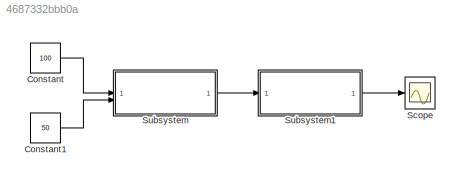
MODEL slx_4687332bbb0a
KIND model
CONFIG AbsTol = auto
CONFIG EnableMultiTasking = off
CONFIG FixedStep = auto
CONFIG MaxStep = auto
CONFIG MinStep = auto
CONFIG RelTol = 1e-3
CONFIG SampleTimeConstraint = Unconstrained
CONFIG SolverName = VariableStepAuto
CONFIG StartTime = 0.0
CONFIG StopTime = 10.0
BLOCK [Constant] Constant
  Value = 100
BLOCK [Constant] Constant1
  Value = 50
BLOCK [Scope] Scope
  Floating = off
  NumInputPorts = 1
  ScopeSpecificationString = Simulink.scopes.TimeScopeBlockCfg('CurrentConfiguration', extmgr.ConfigurationSet(extmgr.Configuration('Core','General UI',true),extmgr.Configuration('Core','Source UI',true),extmgr.Configuration('Sources','WiredSimulink',true,'DataLoggingVariableName','ScopeData1'),extmgr.Configuration('Visuals','Time Domain',true,'SerializedDisplays',{struct('MinYLimReal','0.58','MaxYLimReal','0.78','YLabelReal'...<+1509ch>
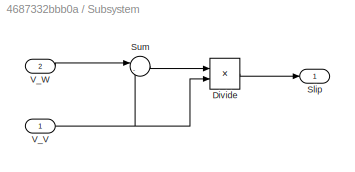
BLOCK [SubSystem] Subsystem
BLOCK [Product] Subsystem/Divide
  Inputs = */
BLOCK [Outport] Subsystem/Slip
BLOCK [Sum] Subsystem/Sum
  Inputs = |-+
BLOCK [Inport] Subsystem/V_V
BLOCK [Inport] Subsystem/V_W
  Port = 2
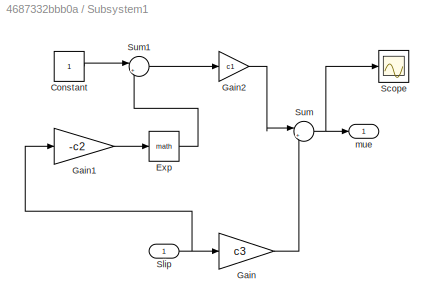
BLOCK [SubSystem] Subsystem1
BLOCK [Constant] Subsystem1/Constant
BLOCK [Math] Subsystem1/Exp
BLOCK [Gain] Subsystem1/Gain
  Gain = c3
BLOCK [Gain] Subsystem1/Gain1
  Gain = -c2
BLOCK [Gain] Subsystem1/Gain2
  Gain = c1
BLOCK [Scope] Subsystem1/Scope
  Floating = off
  NumInputPorts = 1
  ScopeSpecificationString = Simulink.scopes.TimeScopeBlockCfg('CurrentConfiguration', extmgr.ConfigurationSet(extmgr.Configuration('Core','General UI',true),extmgr.Configuration('Core','Source UI',true),extmgr.Configuration('Sources','WiredSimulink',true),extmgr.Configuration('Visuals','Time Domain',true,'SerializedDisplays',{struct('MinYLimReal','0.58','MaxYLimReal','0.78','YLabelReal','','MinYLimMag','0.58','MaxYLimMag','0...<+1463ch>
BLOCK [Inport] Subsystem1/Slip
BLOCK [Sum] Subsystem1/Sum
  Inputs = |+-
BLOCK [Sum] Subsystem1/Sum1
  Inputs = |+-
BLOCK [Outport] Subsystem1/mue
LINE Constant1:1 -> Subsystem:2
LINE Constant:1 -> Subsystem:1
LINE Subsystem/Divide:1 -> Subsystem/Slip:1
LINE Subsystem/Sum:1 -> Subsystem/Divide:1
NET Subsystem/V_V:1 -> Subsystem/Divide:2, Subsystem/Sum:2
LINE Subsystem/V_W:1 -> Subsystem/Sum:1
LINE Subsystem1/Constant:1 -> Subsystem1/Sum1:1
LINE Subsystem1/Exp:1 -> Subsystem1/Sum1:2
LINE Subsystem1/Gain1:1 -> Subsystem1/Exp:1
LINE Subsystem1/Gain2:1 -> Subsystem1/Sum:1
LINE Subsystem1/Gain:1 -> Subsystem1/Sum:2
NET Subsystem1/Slip:1 -> Subsystem1/Gain1:1, Subsystem1/Gain:1
LINE Subsystem1/Sum1:1 -> Subsystem1/Gain2:1
NET Subsystem1/Sum:1 -> Subsystem1/Scope:1, Subsystem1/mue:1
LINE Subsystem1:1 -> Scope:1
LINE Subsystem:1 -> Subsystem1:1
note: NET lines group one-source signal fan-out (src -> all destinations, sorted); 1:1 wires keep LINE
